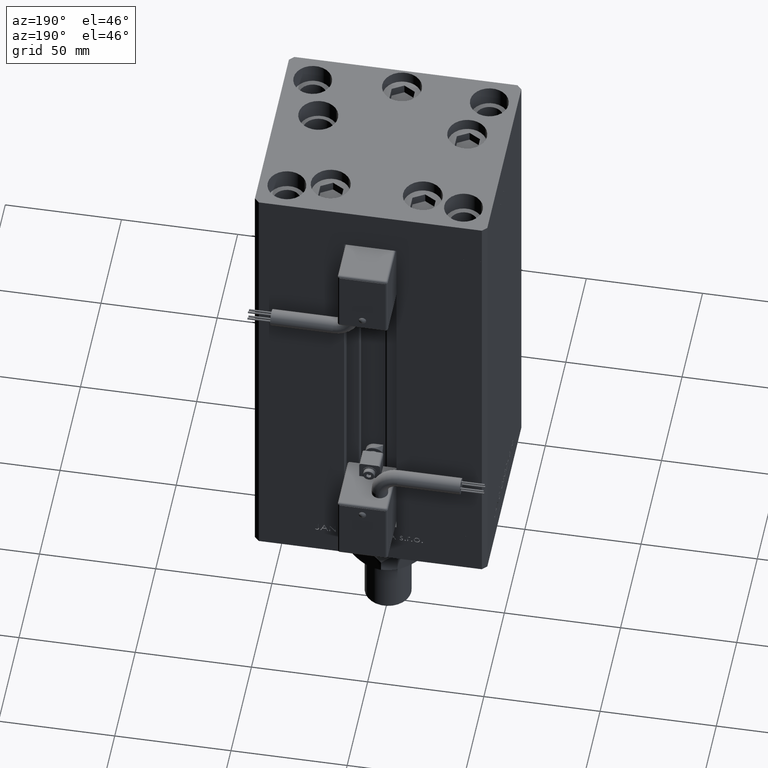
[diagram: clean part render]
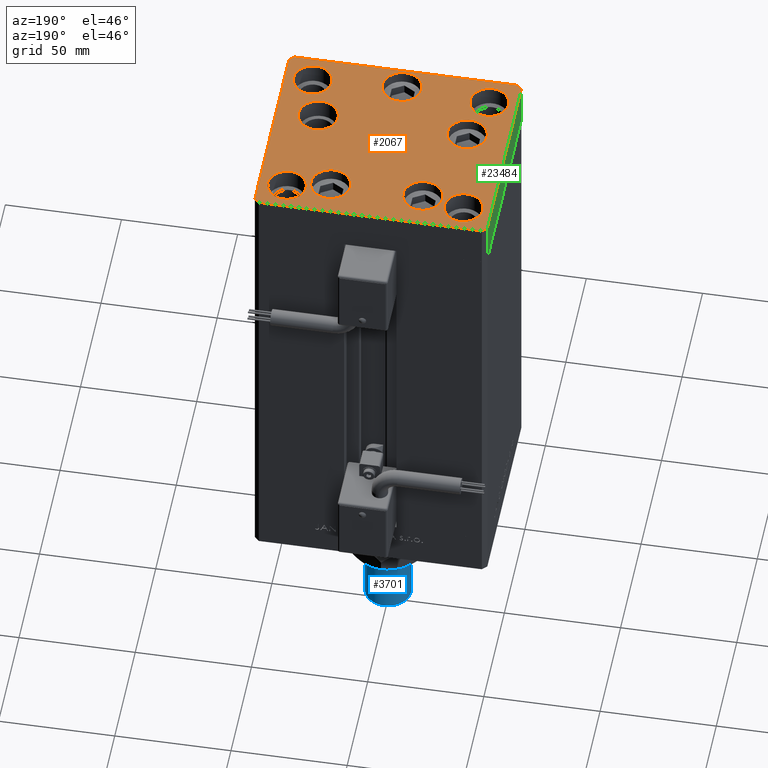
[diagram: same view with three faces highlighted in distinct colors, each labeled with its STEP entity id]
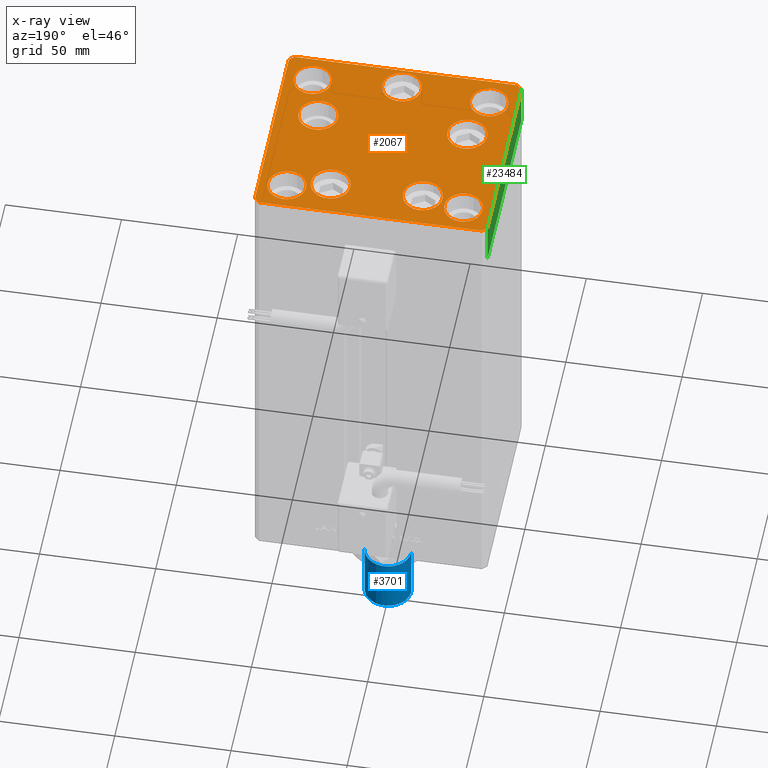
[diagram: x-ray of the same camera — body ghosted, the three highlighted faces saturated]
A machine part, auxiliary view with three faces highlighted in distinct colors.
The next image is the same camera in x-ray (body ghosted, the three faces saturated) — at least one of them is partly hidden behind the body in this view.
Their STEP definitions:

[orange] entity #2067 — the highlighted planar face has unit normal (0, 0, 1).
#41 = DIRECTION ( 'NONE',  ( -0.7071067811865474617, 0.7071067811865474617, 0.000000000000000000 ) ) ;
#66 = VERTEX_POINT ( 'NONE', #7640 ) ;
#120 = AXIS2_PLACEMENT_3D ( 'NONE', #1839, #47776, #18969 ) ;
#441 = ORIENTED_EDGE ( 'NONE', *, *, #47064, .T. ) ;
#990 = VERTEX_POINT ( 'NONE', #12919 ) ;
#1397 = EDGE_CURVE ( 'NONE', #10872, #31561, #18089, .T. ) ;
#1415 = ORIENTED_EDGE ( 'NONE', *, *, #25962, .T. ) ;
#1839 = CARTESIAN_POINT ( 'NONE',  ( 38.00000000000000000, 31.49999999999999289, 0.000000000000000000 ) ) ;
#1872 = VERTEX_POINT ( 'NONE', #35621 ) ;
#1936 = CARTESIAN_POINT ( 'NONE',  ( -47.99999999999999289, -43.50000000000001421, 0.000000000000000000 ) ) ;
#2067 = ADVANCED_FACE ( 'NONE', ( #48268, #22425, #9923, #43905, #35761, #30593, #43637, #26516, #51546, #31131 ), #14829, .T. ) ;
#2181 = AXIS2_PLACEMENT_3D ( 'NONE', #18592, #30543, #2274 ) ;
#2274 = DIRECTION ( 'NONE',  ( 1.000000000000000000, 0.000000000000000000, 0.000000000000000000 ) ) ;
#2684 = VERTEX_POINT ( 'NONE', #33995 ) ;
#2740 = CARTESIAN_POINT ( 'NONE',  ( 49.99999999999992184, 41.49999999999998579, 0.000000000000000000 ) ) ;
#2877 = CARTESIAN_POINT ( 'NONE',  ( -50.00000000000000000, -41.50000000000000000, 0.000000000000000000 ) ) ;
#3444 = EDGE_CURVE ( 'NONE', #14186, #9597, #37283, .T. ) ;
#3601 = LINE ( 'NONE', #52572, #50845 ) ;
#3643 = EDGE_CURVE ( 'NONE', #31262, #50702, #17309, .T. ) ;
#3743 = AXIS2_PLACEMENT_3D ( 'NONE', #15283, #52553, #44360 ) ;
#3781 = VERTEX_POINT ( 'NONE', #13172 ) ;
#4094 = VECTOR ( 'NONE', #22103, 1000.000000000000000 ) ;
#4359 = EDGE_CURVE ( 'NONE', #66, #21183, #33826, .T. ) ;
#4543 = ORIENTED_EDGE ( 'NONE', *, *, #29010, .T. ) ;
#4580 = CIRCLE ( 'NONE', #3743, 8.500000000000000000 ) ;
#4596 = CARTESIAN_POINT ( 'NONE',  ( -32.05550741379015278, -11.33333333333333925, 0.000000000000000000 ) ) ;
#4797 = LINE ( 'NONE', #36901, #38460 ) ;
#4799 = EDGE_LOOP ( 'NONE', ( #22426, #7764 ) ) ;
#4981 = CIRCLE ( 'NONE', #37962, 8.499999999999992895 ) ;
#5358 = CIRCLE ( 'NONE', #120, 8.250000000000000000 ) ;
#5620 = CARTESIAN_POINT ( 'NONE',  ( -8.499999999999996447, -34.00000000000000000, 0.000000000000000000 ) ) ;
#5701 = VERTEX_POINT ( 'NONE', #42001 ) ;
#5794 = ORIENTED_EDGE ( 'NONE', *, *, #1397, .T. ) ;
#5836 = EDGE_LOOP ( 'NONE', ( #45031, #5794 ) ) ;
#5920 = LINE ( 'NONE', #2877, #48614 ) ;
#5964 = CARTESIAN_POINT ( 'NONE',  ( 50.00000000000000000, -41.49999999999999289, 0.000000000000000000 ) ) ;
#6070 = CARTESIAN_POINT ( 'NONE',  ( 23.55550741379015633, -11.33333333333333037, 0.000000000000000000 ) ) ;
#6120 = DIRECTION ( 'NONE',  ( -0.000000000000000000, 0.000000000000000000, 1.000000000000000000 ) ) ;
#6208 = DIRECTION ( 'NONE',  ( -0.7071067811865463515, -0.7071067811865487940, 0.000000000000000000 ) ) ;
#6377 = CIRCLE ( 'NONE', #21117, 8.500000000000000000 ) ;
#6378 = CARTESIAN_POINT ( 'NONE',  ( 47.99999999999990763, 43.50000000000000000, 0.000000000000000000 ) ) ;
#6510 = LINE ( 'NONE', #5964, #32231 ) ;
#7053 = DIRECTION ( 'NONE',  ( -1.003213576468515193E-15, 1.000000000000000000, 0.000000000000000000 ) ) ;
#7447 = ORIENTED_EDGE ( 'NONE', *, *, #39230, .T. ) ;
#7640 = CARTESIAN_POINT ( 'NONE',  ( 11.32068048781373015, 27.62500000000000000, 0.000000000000000000 ) ) ;
#7697 = AXIS2_PLACEMENT_3D ( 'NONE', #31121, #39824, #17809 ) ;
#7764 = ORIENTED_EDGE ( 'NONE', *, *, #25413, .T. ) ;
#8362 = DIRECTION ( 'NONE',  ( 1.000000000000000000, 0.000000000000000000, 0.000000000000000000 ) ) ;
#8428 = VERTEX_POINT ( 'NONE', #8904 ) ;
#8567 = CARTESIAN_POINT ( 'NONE',  ( 19.82068048781373193, 27.62500000000000000, 0.000000000000000000 ) ) ;
#8634 = CARTESIAN_POINT ( 'NONE',  ( -46.24999999999999289, -31.50000000000000000, 0.000000000000000000 ) ) ;
#8767 = ORIENTED_EDGE ( 'NONE', *, *, #43129, .F. ) ;
#8779 = AXIS2_PLACEMENT_3D ( 'NONE', #8567, #45273, #53468 ) ;
#8904 = CARTESIAN_POINT ( 'NONE',  ( -11.32068048781373726, 27.62499999999999645, 0.000000000000000000 ) ) ;
#9597 = VERTEX_POINT ( 'NONE', #6378 ) ;
#9885 = VERTEX_POINT ( 'NONE', #29704 ) ;
#9923 = FACE_BOUND ( 'NONE', #17120, .T. ) ;
#10525 = VERTEX_POINT ( 'NONE', #38190 ) ;
#10749 = CARTESIAN_POINT ( 'NONE',  ( 0.000000000000000000, 0.000000000000000000, 0.000000000000000000 ) ) ;
#10872 = VERTEX_POINT ( 'NONE', #42204 ) ;
#10991 = DIRECTION ( 'NONE',  ( 0.7071067811865463515, 0.7071067811865487940, 0.000000000000000000 ) ) ;
#11120 = CIRCLE ( 'NONE', #13707, 8.250000000000000000 ) ;
#11920 = DIRECTION ( 'NONE',  ( 1.000000000000000000, 0.000000000000000000, 0.000000000000000000 ) ) ;
#12360 = ORIENTED_EDGE ( 'NONE', *, *, #18186, .F. ) ;
#12642 = EDGE_CURVE ( 'NONE', #20071, #3781, #42267, .T. ) ;
#12919 = CARTESIAN_POINT ( 'NONE',  ( -23.55550741379015278, -11.33333333333333748, 0.000000000000000000 ) ) ;
#12955 = DIRECTION ( 'NONE',  ( 1.000000000000000000, 0.000000000000000000, 0.000000000000000000 ) ) ;
#12986 = DIRECTION ( 'NONE',  ( 0.000000000000000000, 0.000000000000000000, 1.000000000000000000 ) ) ;
#13172 = CARTESIAN_POINT ( 'NONE',  ( 29.74999999999999645, -31.49999999999999289, 0.000000000000000000 ) ) ;
#13179 = ORIENTED_EDGE ( 'NONE', *, *, #22435, .T. ) ;
#13497 = ORIENTED_EDGE ( 'NONE', *, *, #4359, .T. ) ;
#13530 = VERTEX_POINT ( 'NONE', #47511 ) ;
#13707 = AXIS2_PLACEMENT_3D ( 'NONE', #25336, #45988, #29687 ) ;
#13873 = EDGE_CURVE ( 'NONE', #9597, #2684, #43845, .T. ) ;
#13948 = VERTEX_POINT ( 'NONE', #19654 ) ;
#14186 = VERTEX_POINT ( 'NONE', #2740 ) ;
#14230 = EDGE_CURVE ( 'NONE', #28847, #10525, #4981, .T. ) ;
#14538 = CARTESIAN_POINT ( 'NONE',  ( 32.05550741379015278, -11.33333333333333037, 0.000000000000000000 ) ) ;
#14760 = DIRECTION ( 'NONE',  ( 8.360113137237628665E-17, -1.000000000000000000, 0.000000000000000000 ) ) ;
#14829 = PLANE ( 'NONE',  #30273 ) ;
#15283 = CARTESIAN_POINT ( 'NONE',  ( -19.82068048781373903, 27.62499999999999645, 0.000000000000000000 ) ) ;
#15324 = CARTESIAN_POINT ( 'NONE',  ( 4.163799117101000559E-15, -34.00000000000000000, 0.000000000000000000 ) ) ;
#16117 = DIRECTION ( 'NONE',  ( 0.000000000000000000, -0.000000000000000000, -1.000000000000000000 ) ) ;
#16577 = CIRCLE ( 'NONE', #8779, 8.500000000000000000 ) ;
#17120 = EDGE_LOOP ( 'NONE', ( #42991, #1415 ) ) ;
#17174 = CARTESIAN_POINT ( 'NONE',  ( -37.99999999999999289, -31.50000000000000000, 0.000000000000000000 ) ) ;
#17309 = CIRCLE ( 'NONE', #20767, 8.250000000000000000 ) ;
#17809 = DIRECTION ( 'NONE',  ( 1.000000000000000000, 0.000000000000000000, 0.000000000000000000 ) ) ;
#17965 = VERTEX_POINT ( 'NONE', #20492 ) ;
#18026 = CARTESIAN_POINT ( 'NONE',  ( 47.99999999999990763, 43.50000000000000000, 0.000000000000000000 ) ) ;
#18089 = CIRCLE ( 'NONE', #7697, 8.500000000000000000 ) ;
#18094 = VECTOR ( 'NONE', #10991, 1000.000000000000000 ) ;
#18186 = EDGE_CURVE ( 'NONE', #35942, #46659, #11120, .T. ) ;
#18496 = AXIS2_PLACEMENT_3D ( 'NONE', #41415, #46021, #50658 ) ;
#18592 = CARTESIAN_POINT ( 'NONE',  ( -38.00000000000000000, 31.50000000000000000, 0.000000000000000000 ) ) ;
#18674 = CIRCLE ( 'NONE', #2181, 8.250000000000000000 ) ;
#18822 = ORIENTED_EDGE ( 'NONE', *, *, #19186, .T. ) ;
#18858 = AXIS2_PLACEMENT_3D ( 'NONE', #46890, #26782, #39284 ) ;
#18969 = DIRECTION ( 'NONE',  ( 1.000000000000000000, 0.000000000000000000, 0.000000000000000000 ) ) ;
#19186 = EDGE_CURVE ( 'NONE', #9885, #13948, #28109, .T. ) ;
#19428 = ORIENTED_EDGE ( 'NONE', *, *, #41513, .F. ) ;
#19613 = AXIS2_PLACEMENT_3D ( 'NONE', #36180, #27751, #52248 ) ;
#19654 = CARTESIAN_POINT ( 'NONE',  ( 50.00000000000000000, -41.49999999999999289, 0.000000000000000000 ) ) ;
#20071 = VERTEX_POINT ( 'NONE', #27321 ) ;
#20112 = CARTESIAN_POINT ( 'NONE',  ( 32.05550741379015278, -11.33333333333333037, 0.000000000000000000 ) ) ;
#20121 = AXIS2_PLACEMENT_3D ( 'NONE', #14538, #31116, #38724 ) ;
#20492 = CARTESIAN_POINT ( 'NONE',  ( -40.55550741379015278, -11.33333333333333925, 0.000000000000000000 ) ) ;
#20767 = AXIS2_PLACEMENT_3D ( 'NONE', #42333, #12986, #46677 ) ;
#21059 = ORIENTED_EDGE ( 'NONE', *, *, #12642, .F. ) ;
#21114 = AXIS2_PLACEMENT_3D ( 'NONE', #4596, #21180, #42102 ) ;
#21117 = AXIS2_PLACEMENT_3D ( 'NONE', #15324, #16117, #31897 ) ;
#21180 = DIRECTION ( 'NONE',  ( 0.000000000000000000, -0.000000000000000000, -1.000000000000000000 ) ) ;
#21183 = VERTEX_POINT ( 'NONE', #22088 ) ;
#21438 = ORIENTED_EDGE ( 'NONE', *, *, #51675, .F. ) ;
#22088 = CARTESIAN_POINT ( 'NONE',  ( 28.32068048781373193, 27.62500000000000000, 0.000000000000000000 ) ) ;
#22103 = DIRECTION ( 'NONE',  ( -1.000000000000000000, -3.614007241618350743E-16, 0.000000000000000000 ) ) ;
#22425 = FACE_BOUND ( 'NONE', #50939, .T. ) ;
#22426 = ORIENTED_EDGE ( 'NONE', *, *, #43859, .T. ) ;
#22435 = EDGE_CURVE ( 'NONE', #52327, #53779, #5920, .T. ) ;
#23522 = ORIENTED_EDGE ( 'NONE', *, *, #13873, .T. ) ;
#23930 = DIRECTION ( 'NONE',  ( 1.000000000000000000, 0.000000000000000000, 0.000000000000000000 ) ) ;
#23933 = CARTESIAN_POINT ( 'NONE',  ( -29.74999999999999289, -31.50000000000000000, 0.000000000000000000 ) ) ;
#24135 = ORIENTED_EDGE ( 'NONE', *, *, #3643, .F. ) ;
#24427 = CARTESIAN_POINT ( 'NONE',  ( -19.82068048781373903, 27.62499999999999645, 0.000000000000000000 ) ) ;
#25192 = DIRECTION ( 'NONE',  ( 1.000000000000000000, 0.000000000000000000, 0.000000000000000000 ) ) ;
#25279 = VERTEX_POINT ( 'NONE', #26900 ) ;
#25286 = EDGE_CURVE ( 'NONE', #13948, #14186, #6510, .T. ) ;
#25336 = CARTESIAN_POINT ( 'NONE',  ( -38.00000000000000000, 31.50000000000000000, 0.000000000000000000 ) ) ;
#25341 = CIRCLE ( 'NONE', #37486, 8.250000000000000000 ) ;
#25413 = EDGE_CURVE ( 'NONE', #8428, #5701, #40923, .T. ) ;
#25608 = DIRECTION ( 'NONE',  ( 0.000000000000000000, 0.000000000000000000, 1.000000000000000000 ) ) ;
#25962 = EDGE_CURVE ( 'NONE', #10525, #28847, #33990, .T. ) ;
#26516 = FACE_BOUND ( 'NONE', #43106, .T. ) ;
#26782 = DIRECTION ( 'NONE',  ( 0.000000000000000000, 0.000000000000000000, 1.000000000000000000 ) ) ;
#26900 = CARTESIAN_POINT ( 'NONE',  ( 46.25000000000000000, 31.49999999999999289, 0.000000000000000000 ) ) ;
#27321 = CARTESIAN_POINT ( 'NONE',  ( 46.25000000000000000, -31.49999999999999289, 0.000000000000000000 ) ) ;
#27751 = DIRECTION ( 'NONE',  ( 0.000000000000000000, 0.000000000000000000, 1.000000000000000000 ) ) ;
#28109 = LINE ( 'NONE', #31377, #18094 ) ;
#28488 = DIRECTION ( 'NONE',  ( 0.000000000000000000, -0.000000000000000000, -1.000000000000000000 ) ) ;
#28847 = VERTEX_POINT ( 'NONE', #6070 ) ;
#29010 = EDGE_CURVE ( 'NONE', #2684, #13530, #46248, .T. ) ;
#29144 = EDGE_CURVE ( 'NONE', #53779, #9885, #4797, .T. ) ;
#29435 = EDGE_CURVE ( 'NONE', #17965, #990, #50623, .T. ) ;
#29687 = DIRECTION ( 'NONE',  ( 1.000000000000000000, 0.000000000000000000, 0.000000000000000000 ) ) ;
#29704 = CARTESIAN_POINT ( 'NONE',  ( 47.99999999999999289, -43.50000000000001421, 0.000000000000000000 ) ) ;
#29873 = EDGE_LOOP ( 'NONE', ( #13179, #38191, #18822, #50744, #43384, #23522, #4543, #52812 ) ) ;
#30089 = ORIENTED_EDGE ( 'NONE', *, *, #40752, .F. ) ;
#30215 = DIRECTION ( 'NONE',  ( 1.000000000000000000, 0.000000000000000000, 0.000000000000000000 ) ) ;
#30273 = AXIS2_PLACEMENT_3D ( 'NONE', #10749, #6120, #47444 ) ;
#30543 = DIRECTION ( 'NONE',  ( 0.000000000000000000, 0.000000000000000000, 1.000000000000000000 ) ) ;
#30593 = FACE_BOUND ( 'NONE', #52018, .T. ) ;
#31116 = DIRECTION ( 'NONE',  ( 0.000000000000000000, -0.000000000000000000, -1.000000000000000000 ) ) ;
#31121 = CARTESIAN_POINT ( 'NONE',  ( 4.163799117101000559E-15, -34.00000000000000000, 0.000000000000000000 ) ) ;
#31131 = FACE_OUTER_BOUND ( 'NONE', #29873, .T. ) ;
#31262 = VERTEX_POINT ( 'NONE', #8634 ) ;
#31377 = CARTESIAN_POINT ( 'NONE',  ( 47.99999999999999289, -43.50000000000001421, 0.000000000000000000 ) ) ;
#31472 = CARTESIAN_POINT ( 'NONE',  ( -50.00000000000000000, -41.50000000000000000, 0.000000000000000000 ) ) ;
#31561 = VERTEX_POINT ( 'NONE', #5620 ) ;
#31785 = CIRCLE ( 'NONE', #19613, 8.250000000000000000 ) ;
#31886 = CARTESIAN_POINT ( 'NONE',  ( -46.25000000000000000, 31.50000000000000000, 0.000000000000000000 ) ) ;
#31897 = DIRECTION ( 'NONE',  ( 1.000000000000000000, 0.000000000000000000, 0.000000000000000000 ) ) ;
#32231 = VECTOR ( 'NONE', #7053, 1000.000000000000000 ) ;
#32372 = AXIS2_PLACEMENT_3D ( 'NONE', #17174, #25608, #30215 ) ;
#32577 = DIRECTION ( 'NONE',  ( 0.000000000000000000, -0.000000000000000000, -1.000000000000000000 ) ) ;
#33317 = CARTESIAN_POINT ( 'NONE',  ( -29.75000000000000000, 31.50000000000000000, 0.000000000000000000 ) ) ;
#33603 = DIRECTION ( 'NONE',  ( 0.000000000000000000, 0.000000000000000000, 1.000000000000000000 ) ) ;
#33734 = EDGE_CURVE ( 'NONE', #31561, #10872, #6377, .T. ) ;
#33826 = CIRCLE ( 'NONE', #53818, 8.500000000000000000 ) ;
#33872 = CARTESIAN_POINT ( 'NONE',  ( 38.00000000000000000, -31.49999999999999289, 0.000000000000000000 ) ) ;
#33990 = CIRCLE ( 'NONE', #20121, 8.499999999999992895 ) ;
#33995 = CARTESIAN_POINT ( 'NONE',  ( -48.00000000000000711, 43.49999999999996447, 0.000000000000000000 ) ) ;
#35621 = CARTESIAN_POINT ( 'NONE',  ( 29.74999999999999645, 31.49999999999999289, 0.000000000000000000 ) ) ;
#35761 = FACE_BOUND ( 'NONE', #42996, .T. ) ;
#35942 = VERTEX_POINT ( 'NONE', #33317 ) ;
#36180 = CARTESIAN_POINT ( 'NONE',  ( 38.00000000000000000, 31.49999999999999289, 0.000000000000000000 ) ) ;
#36901 = CARTESIAN_POINT ( 'NONE',  ( -47.99999999999999289, -43.50000000000001421, 0.000000000000000000 ) ) ;
#37283 = LINE ( 'NONE', #37550, #45092 ) ;
#37486 = AXIS2_PLACEMENT_3D ( 'NONE', #33872, #33603, #12955 ) ;
#37550 = CARTESIAN_POINT ( 'NONE',  ( 49.99999999999992184, 41.49999999999998579, 0.000000000000000000 ) ) ;
#37963 = EDGE_LOOP ( 'NONE', ( #8767, #24135 ) ) ;
#37962 = AXIS2_PLACEMENT_3D ( 'NONE', #20112, #40767, #23930 ) ;
#38190 = CARTESIAN_POINT ( 'NONE',  ( 40.55550741379014568, -11.33333333333332860, 0.000000000000000000 ) ) ;
#38191 = ORIENTED_EDGE ( 'NONE', *, *, #29144, .T. ) ;
#38460 = VECTOR ( 'NONE', #25192, 1000.000000000000000 ) ;
#38724 = DIRECTION ( 'NONE',  ( 1.000000000000000000, 0.000000000000000000, 0.000000000000000000 ) ) ;
#39169 = AXIS2_PLACEMENT_3D ( 'NONE', #24427, #32577, #11920 ) ;
#39230 = EDGE_CURVE ( 'NONE', #21183, #66, #16577, .T. ) ;
#39284 = DIRECTION ( 'NONE',  ( 1.000000000000000000, 0.000000000000000000, 0.000000000000000000 ) ) ;
#39824 = DIRECTION ( 'NONE',  ( 0.000000000000000000, -0.000000000000000000, -1.000000000000000000 ) ) ;
#40752 = EDGE_CURVE ( 'NONE', #25279, #1872, #5358, .T. ) ;
#40767 = DIRECTION ( 'NONE',  ( 0.000000000000000000, -0.000000000000000000, -1.000000000000000000 ) ) ;
#40923 = CIRCLE ( 'NONE', #39169, 8.500000000000000000 ) ;
#41066 = CIRCLE ( 'NONE', #32372, 8.250000000000000000 ) ;
#41415 = CARTESIAN_POINT ( 'NONE',  ( -32.05550741379015278, -11.33333333333333925, 0.000000000000000000 ) ) ;
#41513 = EDGE_CURVE ( 'NONE', #3781, #20071, #25341, .T. ) ;
#42001 = CARTESIAN_POINT ( 'NONE',  ( -28.32068048781373903, 27.62499999999999645, 0.000000000000000000 ) ) ;
#42102 = DIRECTION ( 'NONE',  ( 1.000000000000000000, 0.000000000000000000, 0.000000000000000000 ) ) ;
#42204 = CARTESIAN_POINT ( 'NONE',  ( 8.500000000000003553, -34.00000000000000000, 0.000000000000000000 ) ) ;
#42267 = CIRCLE ( 'NONE', #18858, 8.250000000000000000 ) ;
#42333 = CARTESIAN_POINT ( 'NONE',  ( -37.99999999999999289, -31.50000000000000000, 0.000000000000000000 ) ) ;
#42991 = ORIENTED_EDGE ( 'NONE', *, *, #14230, .T. ) ;
#42996 = EDGE_LOOP ( 'NONE', ( #49309, #441 ) ) ;
#43106 = EDGE_LOOP ( 'NONE', ( #12360, #21438 ) ) ;
#43129 = EDGE_CURVE ( 'NONE', #50702, #31262, #41066, .T. ) ;
#43384 = ORIENTED_EDGE ( 'NONE', *, *, #3444, .T. ) ;
#43637 = FACE_BOUND ( 'NONE', #37963, .T. ) ;
#43724 = CARTESIAN_POINT ( 'NONE',  ( -48.00000000000000711, 43.49999999999996447, 0.000000000000000000 ) ) ;
#43845 = LINE ( 'NONE', #18026, #4094 ) ;
#43859 = EDGE_CURVE ( 'NONE', #5701, #8428, #4580, .T. ) ;
#43905 = FACE_BOUND ( 'NONE', #5836, .T. ) ;
#44360 = DIRECTION ( 'NONE',  ( 1.000000000000000000, 0.000000000000000000, 0.000000000000000000 ) ) ;
#44456 = ORIENTED_EDGE ( 'NONE', *, *, #53819, .F. ) ;
#45031 = ORIENTED_EDGE ( 'NONE', *, *, #33734, .T. ) ;
#45092 = VECTOR ( 'NONE', #41, 1000.000000000000114 ) ;
#45273 = DIRECTION ( 'NONE',  ( 0.000000000000000000, -0.000000000000000000, -1.000000000000000000 ) ) ;
#45988 = DIRECTION ( 'NONE',  ( 0.000000000000000000, 0.000000000000000000, 1.000000000000000000 ) ) ;
#46021 = DIRECTION ( 'NONE',  ( 0.000000000000000000, -0.000000000000000000, -1.000000000000000000 ) ) ;
#46248 = LINE ( 'NONE', #43724, #49767 ) ;
#46659 = VERTEX_POINT ( 'NONE', #31886 ) ;
#46677 = DIRECTION ( 'NONE',  ( 1.000000000000000000, 0.000000000000000000, 0.000000000000000000 ) ) ;
#46890 = CARTESIAN_POINT ( 'NONE',  ( 38.00000000000000000, -31.49999999999999289, 0.000000000000000000 ) ) ;
#47064 = EDGE_CURVE ( 'NONE', #990, #17965, #50653, .T. ) ;
#47444 = DIRECTION ( 'NONE',  ( 1.000000000000000000, 0.000000000000000000, 0.000000000000000000 ) ) ;
#47511 = CARTESIAN_POINT ( 'NONE',  ( -50.00000000000000711, 41.49999999999995026, 0.000000000000000000 ) ) ;
#47516 = DIRECTION ( 'NONE',  ( 0.7071067811865474617, -0.7071067811865474617, 0.000000000000000000 ) ) ;
#47776 = DIRECTION ( 'NONE',  ( 0.000000000000000000, 0.000000000000000000, 1.000000000000000000 ) ) ;
#48268 = FACE_BOUND ( 'NONE', #4799, .T. ) ;
#48614 = VECTOR ( 'NONE', #47516, 1000.000000000000114 ) ;
#49309 = ORIENTED_EDGE ( 'NONE', *, *, #29435, .T. ) ;
#49767 = VECTOR ( 'NONE', #6208, 1000.000000000000000 ) ;
#50623 = CIRCLE ( 'NONE', #18496, 8.500000000000000000 ) ;
#50653 = CIRCLE ( 'NONE', #21114, 8.500000000000000000 ) ;
#50658 = DIRECTION ( 'NONE',  ( 1.000000000000000000, 0.000000000000000000, 0.000000000000000000 ) ) ;
#50702 = VERTEX_POINT ( 'NONE', #23933 ) ;
#50744 = ORIENTED_EDGE ( 'NONE', *, *, #25286, .T. ) ;
#50845 = VECTOR ( 'NONE', #14760, 1000.000000000000000 ) ;
#50939 = EDGE_LOOP ( 'NONE', ( #13497, #7447 ) ) ;
#51546 = FACE_BOUND ( 'NONE', #51782, .T. ) ;
#51675 = EDGE_CURVE ( 'NONE', #46659, #35942, #18674, .T. ) ;
#51782 = EDGE_LOOP ( 'NONE', ( #30089, #44456 ) ) ;
#52018 = EDGE_LOOP ( 'NONE', ( #21059, #19428 ) ) ;
#52024 = EDGE_CURVE ( 'NONE', #13530, #52327, #3601, .T. ) ;
#52248 = DIRECTION ( 'NONE',  ( 1.000000000000000000, 0.000000000000000000, 0.000000000000000000 ) ) ;
#52327 = VERTEX_POINT ( 'NONE', #31472 ) ;
#52553 = DIRECTION ( 'NONE',  ( 0.000000000000000000, -0.000000000000000000, -1.000000000000000000 ) ) ;
#52572 = CARTESIAN_POINT ( 'NONE',  ( -50.00000000000000711, 41.49999999999995026, 0.000000000000000000 ) ) ;
#52812 = ORIENTED_EDGE ( 'NONE', *, *, #52024, .T. ) ;
#53468 = DIRECTION ( 'NONE',  ( 1.000000000000000000, 0.000000000000000000, 0.000000000000000000 ) ) ;
#53779 = VERTEX_POINT ( 'NONE', #1936 ) ;
#53796 = CARTESIAN_POINT ( 'NONE',  ( 19.82068048781373193, 27.62500000000000000, 0.000000000000000000 ) ) ;
#53818 = AXIS2_PLACEMENT_3D ( 'NONE', #53796, #28488, #8362 ) ;
#53819 = EDGE_CURVE ( 'NONE', #1872, #25279, #31785, .T. ) ;

[blue] entity #3701 — the highlighted cylindrical surface (edge-blend (fillet) strip) has radius 10 mm, axis along (0, -0, 1).
#11 = VERTEX_POINT ( 'NONE', #38649 ) ;
#2745 = CARTESIAN_POINT ( 'NONE',  ( -10.00000000000000000, 0.000000000000000000, 53.00000000000000711 ) ) ;
#3701 = ADVANCED_FACE ( 'NONE', ( #23827 ), #16191, .T. ) ;
#5961 = VERTEX_POINT ( 'NONE', #37063 ) ;
#6857 = CARTESIAN_POINT ( 'NONE',  ( 10.00000000000000000, 1.224646799147353059E-15, 52.00000000000004974 ) ) ;
#7572 = DIRECTION ( 'NONE',  ( 1.000000000000000000, 0.000000000000000000, 0.000000000000000000 ) ) ;
#7706 = CIRCLE ( 'NONE', #25894, 10.00000000000000000 ) ;
#10063 = VERTEX_POINT ( 'NONE', #22826 ) ;
#11284 = ORIENTED_EDGE ( 'NONE', *, *, #51823, .T. ) ;
#12111 = CARTESIAN_POINT ( 'NONE',  ( 0.000000000000000000, 0.000000000000000000, 53.00000000000000711 ) ) ;
#16191 = CYLINDRICAL_SURFACE ( 'NONE', #39034, 10.00000000000000000 ) ;
#17098 = DIRECTION ( 'NONE',  ( -0.000000000000000000, -0.000000000000000000, -1.000000000000000000 ) ) ;
#18343 = EDGE_LOOP ( 'NONE', ( #37197, #11284, #28587, #40242 ) ) ;
#19464 = EDGE_CURVE ( 'NONE', #10063, #11, #7706, .T. ) ;
#20283 = VERTEX_POINT ( 'NONE', #6857 ) ;
#22826 = CARTESIAN_POINT ( 'NONE',  ( 10.00000000000000000, 1.224646799147353059E-15, 28.00000000000002487 ) ) ;
#23172 = EDGE_CURVE ( 'NONE', #5961, #11, #31555, .T. ) ;
#23827 = FACE_OUTER_BOUND ( 'NONE', #18343, .T. ) ;
#25894 = AXIS2_PLACEMENT_3D ( 'NONE', #28233, #32314, #40221 ) ;
#26087 = VECTOR ( 'NONE', #43508, 1000.000000000000000 ) ;
#28233 = CARTESIAN_POINT ( 'NONE',  ( 0.000000000000000000, 0.000000000000000000, 28.00000000000002487 ) ) ;
#28587 = ORIENTED_EDGE ( 'NONE', *, *, #19464, .T. ) ;
#31278 = EDGE_CURVE ( 'NONE', #5961, #20283, #44481, .T. ) ;
#31555 = LINE ( 'NONE', #2745, #26087 ) ;
#32309 = CARTESIAN_POINT ( 'NONE',  ( 0.000000000000000000, 0.000000000000000000, 52.00000000000004974 ) ) ;
#32314 = DIRECTION ( 'NONE',  ( -0.000000000000000000, -0.000000000000000000, 1.000000000000000000 ) ) ;
#32503 = DIRECTION ( 'NONE',  ( -1.000000000000000000, 0.000000000000000000, 0.000000000000000000 ) ) ;
#32761 = DIRECTION ( 'NONE',  ( -0.000000000000000000, -0.000000000000000000, -1.000000000000000000 ) ) ;
#37063 = CARTESIAN_POINT ( 'NONE',  ( -10.00000000000000000, 0.000000000000000000, 52.00000000000004974 ) ) ;
#37197 = ORIENTED_EDGE ( 'NONE', *, *, #31278, .T. ) ;
#38649 = CARTESIAN_POINT ( 'NONE',  ( -10.00000000000000000, 0.000000000000000000, 28.00000000000002487 ) ) ;
#39034 = AXIS2_PLACEMENT_3D ( 'NONE', #12111, #32761, #32503 ) ;
#40221 = DIRECTION ( 'NONE',  ( 1.000000000000000000, 0.000000000000000000, 0.000000000000000000 ) ) ;
#40242 = ORIENTED_EDGE ( 'NONE', *, *, #23172, .F. ) ;
#41843 = CARTESIAN_POINT ( 'NONE',  ( 10.00000000000000000, 1.224646799147353059E-15, 53.00000000000000711 ) ) ;
#42369 = LINE ( 'NONE', #41843, #43894 ) ;
#42724 = AXIS2_PLACEMENT_3D ( 'NONE', #32309, #45070, #7572 ) ;
#43508 = DIRECTION ( 'NONE',  ( -0.000000000000000000, -0.000000000000000000, -1.000000000000000000 ) ) ;
#43894 = VECTOR ( 'NONE', #17098, 1000.000000000000000 ) ;
#44481 = CIRCLE ( 'NONE', #42724, 10.00000000000000000 ) ;
#45070 = DIRECTION ( 'NONE',  ( 0.000000000000000000, 0.000000000000000000, -1.000000000000000000 ) ) ;
#51823 = EDGE_CURVE ( 'NONE', #20283, #10063, #42369, .T. ) ;

[green] entity #23484 — the highlighted planar face has unit normal (-1, -0, 0).
#2126 = DIRECTION ( 'NONE',  ( 8.360113137237628665E-17, -1.000000000000000000, 0.000000000000000000 ) ) ;
#2874 = EDGE_LOOP ( 'NONE', ( #29059, #26894, #35126, #48868 ) ) ;
#3601 = LINE ( 'NONE', #52572, #50845 ) ;
#6871 = DIRECTION ( 'NONE',  ( 8.360113137237628665E-17, -1.000000000000000000, 0.000000000000000000 ) ) ;
#6975 = AXIS2_PLACEMENT_3D ( 'NONE', #26337, #31482, #2126 ) ;
#9949 = VERTEX_POINT ( 'NONE', #12060 ) ;
#12060 = CARTESIAN_POINT ( 'NONE',  ( -50.00000000000000711, 41.49999999999995026, -19.00000000000000000 ) ) ;
#13530 = VERTEX_POINT ( 'NONE', #47511 ) ;
#14760 = DIRECTION ( 'NONE',  ( 8.360113137237628665E-17, -1.000000000000000000, 0.000000000000000000 ) ) ;
#17070 = CARTESIAN_POINT ( 'NONE',  ( -50.00000000000000000, -41.50000000000000000, -19.00000000000000000 ) ) ;
#18665 = LINE ( 'NONE', #51839, #23349 ) ;
#19596 = EDGE_CURVE ( 'NONE', #26507, #52327, #20350, .T. ) ;
#20350 = LINE ( 'NONE', #45341, #27659 ) ;
#20732 = EDGE_CURVE ( 'NONE', #9949, #13530, #18665, .T. ) ;
#23349 = VECTOR ( 'NONE', #47203, 1000.000000000000000 ) ;
#23484 = ADVANCED_FACE ( 'NONE', ( #43171 ), #31210, .T. ) ;
#26337 = CARTESIAN_POINT ( 'NONE',  ( -50.00000000000000711, 41.49999999999995026, -19.00000000000000000 ) ) ;
#26507 = VERTEX_POINT ( 'NONE', #17070 ) ;
#26717 = LINE ( 'NONE', #39490, #35086 ) ;
#26894 = ORIENTED_EDGE ( 'NONE', *, *, #20732, .F. ) ;
#27659 = VECTOR ( 'NONE', #53534, 1000.000000000000000 ) ;
#29059 = ORIENTED_EDGE ( 'NONE', *, *, #52024, .F. ) ;
#31210 = PLANE ( 'NONE',  #6975 ) ;
#31472 = CARTESIAN_POINT ( 'NONE',  ( -50.00000000000000000, -41.50000000000000000, 0.000000000000000000 ) ) ;
#31482 = DIRECTION ( 'NONE',  ( -1.000000000000000000, -8.360113137237628665E-17, 0.000000000000000000 ) ) ;
#35086 = VECTOR ( 'NONE', #6871, 1000.000000000000000 ) ;
#35126 = ORIENTED_EDGE ( 'NONE', *, *, #49310, .T. ) ;
#39490 = CARTESIAN_POINT ( 'NONE',  ( -50.00000000000000711, 41.49999999999995026, -19.00000000000000000 ) ) ;
#43171 = FACE_OUTER_BOUND ( 'NONE', #2874, .T. ) ;
#45341 = CARTESIAN_POINT ( 'NONE',  ( -50.00000000000000000, -41.50000000000000000, -19.00000000000000000 ) ) ;
#47203 = DIRECTION ( 'NONE',  ( 0.000000000000000000, 0.000000000000000000, 1.000000000000000000 ) ) ;
#47511 = CARTESIAN_POINT ( 'NONE',  ( -50.00000000000000711, 41.49999999999995026, 0.000000000000000000 ) ) ;
#48868 = ORIENTED_EDGE ( 'NONE', *, *, #19596, .T. ) ;
#49310 = EDGE_CURVE ( 'NONE', #9949, #26507, #26717, .T. ) ;
#50845 = VECTOR ( 'NONE', #14760, 1000.000000000000000 ) ;
#51839 = CARTESIAN_POINT ( 'NONE',  ( -50.00000000000000711, 41.49999999999995026, -19.00000000000000000 ) ) ;
#52024 = EDGE_CURVE ( 'NONE', #13530, #52327, #3601, .T. ) ;
#52327 = VERTEX_POINT ( 'NONE', #31472 ) ;
#52572 = CARTESIAN_POINT ( 'NONE',  ( -50.00000000000000711, 41.49999999999995026, 0.000000000000000000 ) ) ;
#53534 = DIRECTION ( 'NONE',  ( 0.000000000000000000, 0.000000000000000000, 1.000000000000000000 ) ) ;